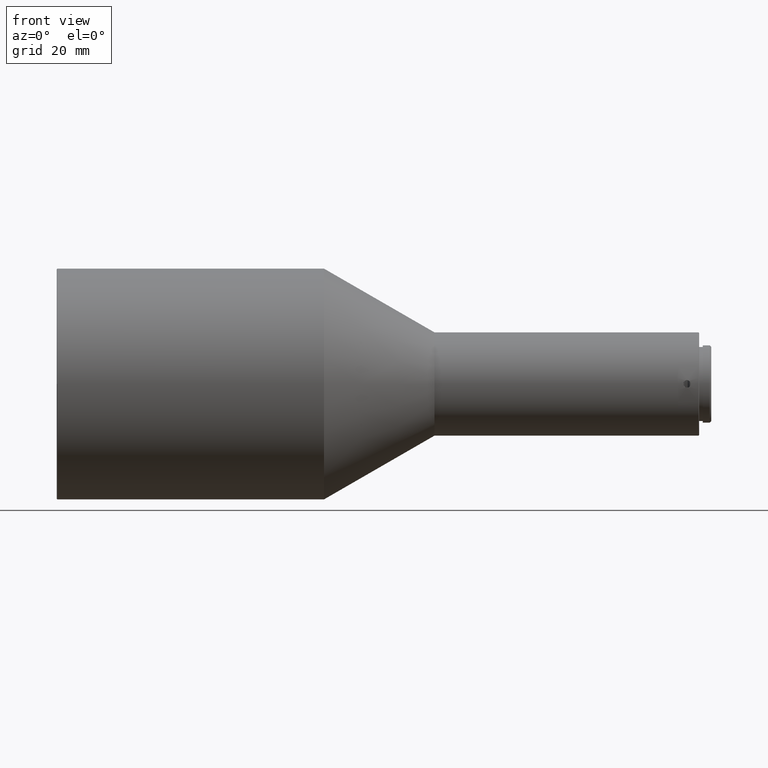
[diagram: clean part render]
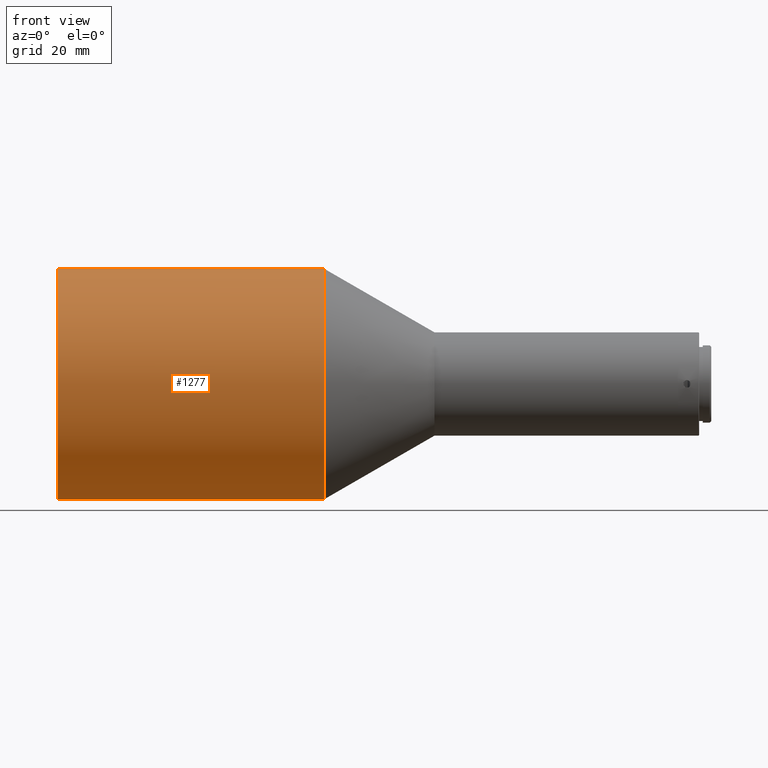
[diagram: same view with one face highlighted and labeled with its STEP entity id]
A machine part, front view. The second image highlights one B-rep face of the part: STEP entity #1277.
In plain terms, the highlighted cylindrical surface (partial cylindrical patch) has radius 38 mm, axis along (1, 0, 0).
Its self-contained STEP definition (entity closure, byte-faithful):
#3 = DIRECTION ( 'NONE',  ( 0.000000000000000000, 0.000000000000000000, -1.000000000000000000 ) ) ;
#23 = CARTESIAN_POINT ( 'NONE',  ( -87.79999999999839133, 4.653657836759941941E-15, 38.00000000000000000 ) ) ;
#178 = DIRECTION ( 'NONE',  ( 0.000000000000000000, 0.000000000000000000, -1.000000000000000000 ) ) ;
#347 = EDGE_CURVE ( 'NONE', #2227, #1129, #906, .T. ) ;
#354 = CARTESIAN_POINT ( 'NONE',  ( 1.554312234475219157E-12, 0.000000000000000000, 0.000000000000000000 ) ) ;
#370 = VECTOR ( 'NONE', #1197, 1000.000000000000000 ) ;
#545 = CARTESIAN_POINT ( 'NONE',  ( 1.554312234475219157E-12, 4.653657836759941941E-15, 38.00000000000000000 ) ) ;
#619 = DIRECTION ( 'NONE',  ( 1.000000000000000000, 0.000000000000000000, 0.000000000000000000 ) ) ;
#636 = CIRCLE ( 'NONE', #2046, 38.00000000000000000 ) ;
#714 = CARTESIAN_POINT ( 'NONE',  ( -87.79999999999839133, 0.000000000000000000, 0.000000000000000000 ) ) ;
#761 = VERTEX_POINT ( 'NONE', #23 ) ;
#777 = CYLINDRICAL_SURFACE ( 'NONE', #1320, 38.00000000000000000 ) ;
#804 = ORIENTED_EDGE ( 'NONE', *, *, #1520, .F. ) ;
#906 = LINE ( 'NONE', #2242, #2394 ) ;
#939 = CARTESIAN_POINT ( 'NONE',  ( -60.00000000000000000, 0.000000000000000000, 0.000000000000000000 ) ) ;
#997 = DIRECTION ( 'NONE',  ( 0.000000000000000000, 0.000000000000000000, -1.000000000000000000 ) ) ;
#1037 = EDGE_CURVE ( 'NONE', #761, #2477, #1249, .T. ) ;
#1051 = ORIENTED_EDGE ( 'NONE', *, *, #2400, .T. ) ;
#1129 = VERTEX_POINT ( 'NONE', #1601 ) ;
#1154 = FACE_OUTER_BOUND ( 'NONE', #1625, .T. ) ;
#1177 = CARTESIAN_POINT ( 'NONE',  ( -87.79999999999839133, -38.00000000000001421, 4.653657836759943518E-15 ) ) ;
#1182 = LINE ( 'NONE', #1561, #370 ) ;
#1197 = DIRECTION ( 'NONE',  ( 1.000000000000000000, 0.000000000000000000, 0.000000000000000000 ) ) ;
#1218 = CARTESIAN_POINT ( 'NONE',  ( -87.79999999999839133, 0.000000000000000000, -38.00000000000000000 ) ) ;
#1249 = CIRCLE ( 'NONE', #2104, 38.00000000000000000 ) ;
#1277 = ADVANCED_FACE ( 'NONE', ( #1154 ), #777, .T. ) ;
#1292 = DIRECTION ( 'NONE',  ( 1.000000000000000000, 0.000000000000000000, 0.000000000000000000 ) ) ;
#1298 = DIRECTION ( 'NONE',  ( -1.000000000000000000, -0.000000000000000000, -0.000000000000000000 ) ) ;
#1320 = AXIS2_PLACEMENT_3D ( 'NONE', #939, #1292, #3 ) ;
#1418 = DIRECTION ( 'NONE',  ( 0.000000000000000000, 0.000000000000000000, -1.000000000000000000 ) ) ;
#1477 = ORIENTED_EDGE ( 'NONE', *, *, #1037, .T. ) ;
#1507 = CIRCLE ( 'NONE', #2115, 38.00000000000000000 ) ;
#1520 = EDGE_CURVE ( 'NONE', #761, #1602, #1182, .T. ) ;
#1561 = CARTESIAN_POINT ( 'NONE',  ( -60.00000000000000000, 4.653657836759941941E-15, 38.00000000000000000 ) ) ;
#1601 = CARTESIAN_POINT ( 'NONE',  ( 1.554312234475219157E-12, 0.000000000000000000, -38.00000000000000000 ) ) ;
#1602 = VERTEX_POINT ( 'NONE', #545 ) ;
#1604 = EDGE_CURVE ( 'NONE', #1129, #1602, #636, .T. ) ;
#1625 = EDGE_LOOP ( 'NONE', ( #804, #1477, #1051, #2229, #1945 ) ) ;
#1690 = DIRECTION ( 'NONE',  ( 1.000000000000000000, 0.000000000000000000, 0.000000000000000000 ) ) ;
#1945 = ORIENTED_EDGE ( 'NONE', *, *, #1604, .T. ) ;
#2046 = AXIS2_PLACEMENT_3D ( 'NONE', #354, #1298, #178 ) ;
#2104 = AXIS2_PLACEMENT_3D ( 'NONE', #2379, #619, #1418 ) ;
#2115 = AXIS2_PLACEMENT_3D ( 'NONE', #714, #2243, #997 ) ;
#2227 = VERTEX_POINT ( 'NONE', #1218 ) ;
#2229 = ORIENTED_EDGE ( 'NONE', *, *, #347, .T. ) ;
#2242 = CARTESIAN_POINT ( 'NONE',  ( -60.00000000000000000, 0.000000000000000000, -38.00000000000000000 ) ) ;
#2243 = DIRECTION ( 'NONE',  ( 1.000000000000000000, 0.000000000000000000, 0.000000000000000000 ) ) ;
#2379 = CARTESIAN_POINT ( 'NONE',  ( -87.79999999999839133, 0.000000000000000000, 0.000000000000000000 ) ) ;
#2394 = VECTOR ( 'NONE', #1690, 1000.000000000000000 ) ;
#2400 = EDGE_CURVE ( 'NONE', #2477, #2227, #1507, .T. ) ;
#2477 = VERTEX_POINT ( 'NONE', #1177 ) ;